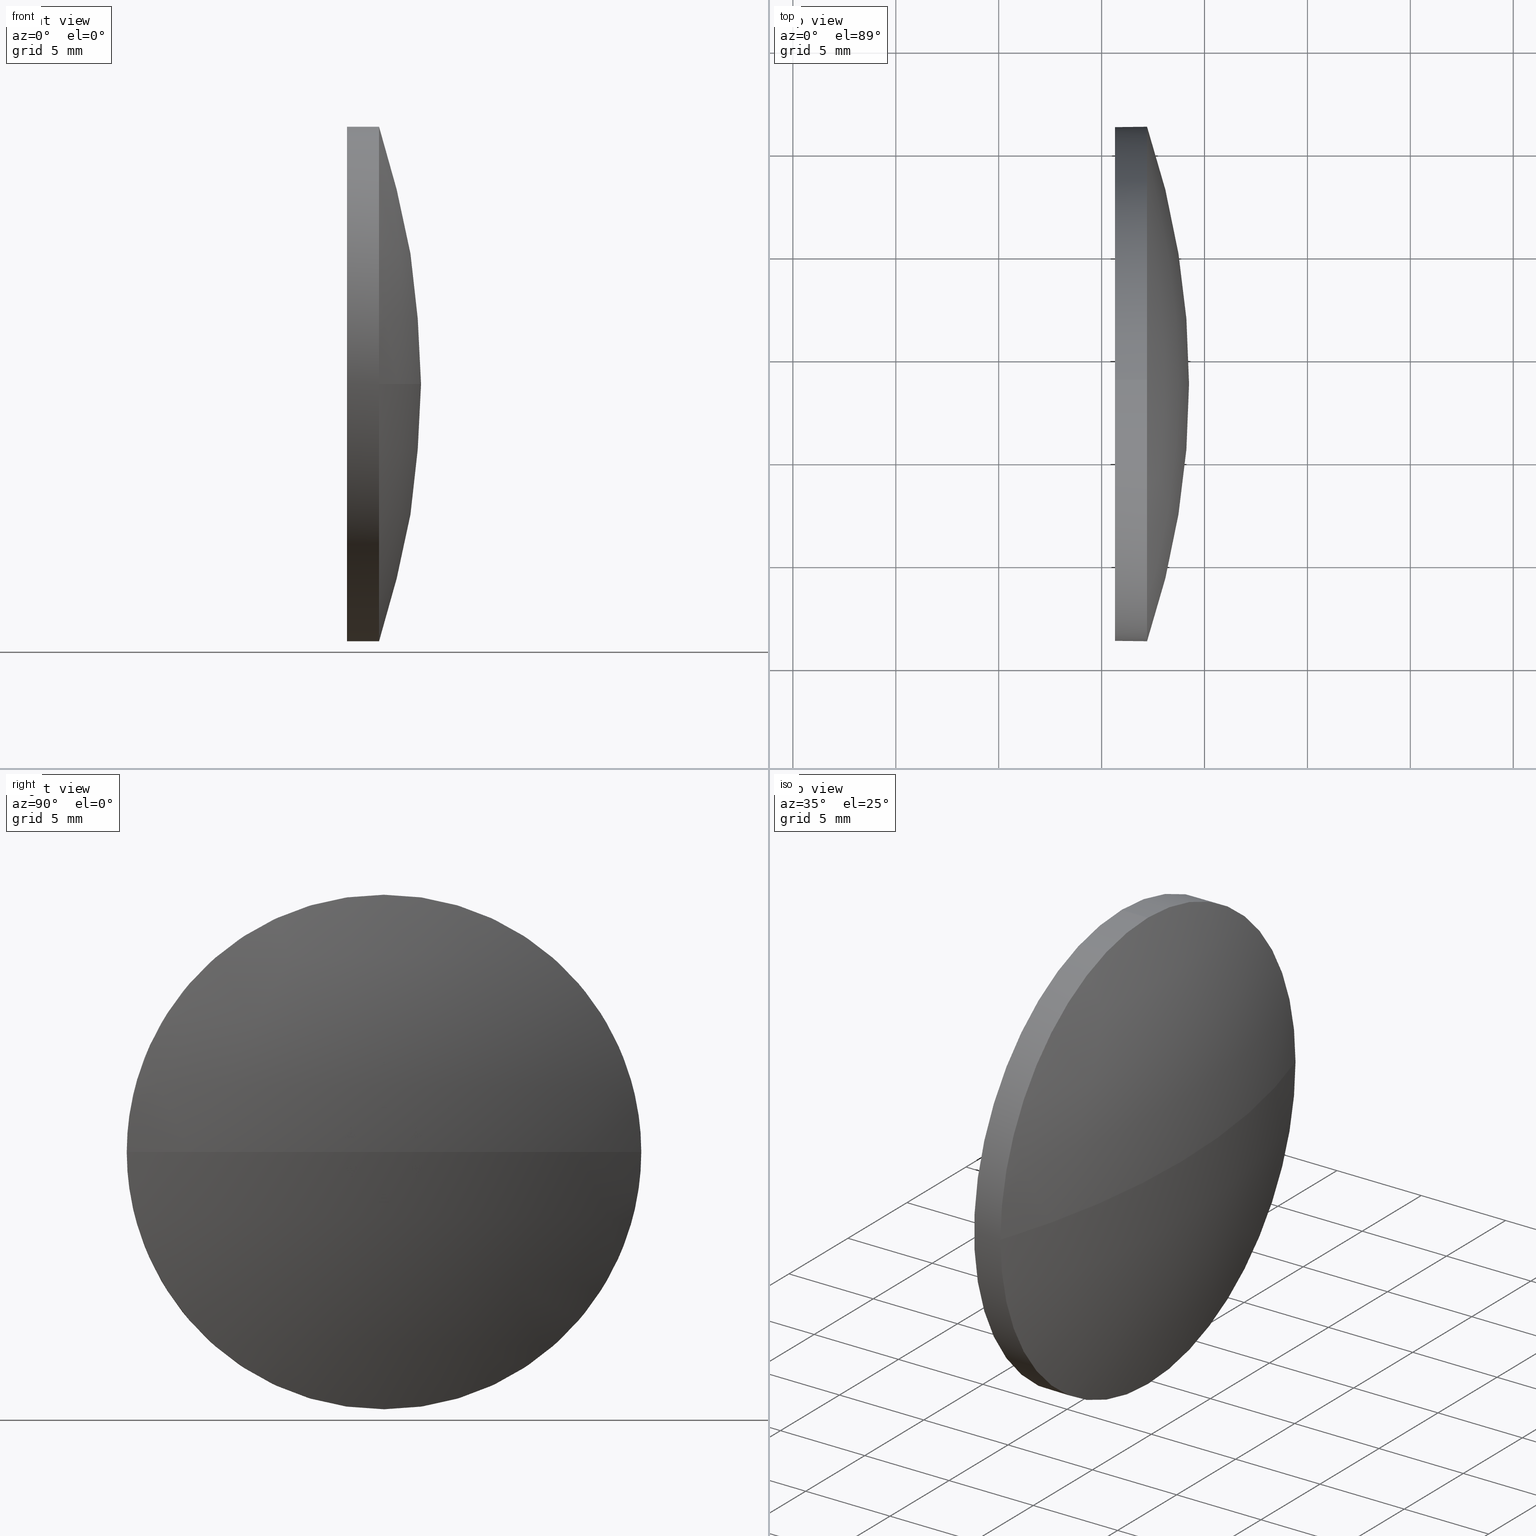
[diagram: canonical four-view strip — front | top / right | iso, engineering-drawing reading convention]
A machine part, canonical four-view strip (front | top / right | iso — engineering-drawing reading convention). The complete STEP part file that produces these views, byte-faithful:
ISO-10303-21;
HEADER;
FILE_DESCRIPTION (( 'STEP AP214' ),
    '1' );
FILE_NAME ('100042.STEP',
    '2019-04-29T07:02:15',
    ( '' ),
    ( '' ),
    'SwSTEP 2.0',
    'SolidWorks 2016',
    '' );
FILE_SCHEMA (( 'AUTOMOTIVE_DESIGN' ));
ENDSEC;

DATA;
#1 = VECTOR ( 'NONE', #125, 1000.000000000000000 ) ;
#2 = COLOUR_RGB ( '',1.000000000000000000, 1.000000000000000000, 1.000000000000000000 ) ;
#3 = UNCERTAINTY_MEASURE_WITH_UNIT (LENGTH_MEASURE( 1.000000000000000100E-005 ), #177, 'distance_accuracy_value', 'NONE');
#4 = CARTESIAN_POINT ( 'NONE',  ( 702.2082137822092100, 248.6989515339254200, 12.49999999999998400 ) ) ;
#5 = EDGE_CURVE ( 'NONE', #52, #74, #49, .T. ) ;
#6 = EDGE_LOOP ( 'NONE', ( #66, #115, #128, #35, #126 ) ) ;
#7 = COLOUR_RGB ( '',1.000000000000000000, 1.000000000000000000, 1.000000000000000000 ) ;
#8 = PRODUCT_RELATED_PRODUCT_CATEGORY ( 'part', '', ( #123 ) ) ;
#9 = AXIS2_PLACEMENT_3D ( 'NONE', #105, #33, #124 ) ;
#10 = FILL_AREA_STYLE_COLOUR ( '', #7 ) ;
#11 = CARTESIAN_POINT ( 'NONE',  ( 0.0000000000000000000, 0.0000000000000000000, 0.0000000000000000000 ) ) ;
#12 = PRESENTATION_LAYER_ASSIGNMENT (  '', '', ( #170 ) ) ;
#13 = APPLICATION_CONTEXT ( 'automotive_design' ) ;
#14 = DIRECTION ( 'NONE',  ( -1.000000000000000000, 0.0000000000000000000, 0.0000000000000000000 ) ) ;
#15 = VERTEX_POINT ( 'NONE', #80 ) ;
#16 = EDGE_CURVE ( 'NONE', #15, #52, #83, .T. ) ;
#17 = FACE_OUTER_BOUND ( 'NONE', #85, .T. ) ;
#18 = PLANE ( 'NONE',  #127 ) ;
#19 = ADVANCED_FACE ( 'NONE', ( #60 ), #108, .T. ) ;
#20 =( NAMED_UNIT ( * ) SI_UNIT ( $, .STERADIAN. ) SOLID_ANGLE_UNIT ( ) );
#21 = VECTOR ( 'NONE', #106, 1000.000000000000000 ) ;
#22 = DIRECTION ( 'NONE',  ( -1.000000000000000000, -0.0000000000000000000, -0.0000000000000000000 ) ) ;
#23 = CIRCLE ( 'NONE', #31, 39.31656862745097700 ) ;
#24 = ORIENTED_EDGE ( 'NONE', *, *, #186, .F. ) ;
#25 = AXIS2_PLACEMENT_3D ( 'NONE', #101, #139, #14 ) ;
#26 = SURFACE_SIDE_STYLE ('',( #44 ) ) ;
#27 = DIRECTION ( 'NONE',  ( 0.0000000000000000000, 0.0000000000000000000, 1.000000000000000000 ) ) ;
#28 = UNCERTAINTY_MEASURE_WITH_UNIT (LENGTH_MEASURE( 1.000000000000000100E-005 ), #129, 'distance_accuracy_value', 'NONE');
#29 = STYLED_ITEM ( 'NONE', ( #113 ), #50 ) ;
#30 = CARTESIAN_POINT ( 'NONE',  ( 702.2082137822092100, 248.6989515339254200, -12.49999999999998400 ) ) ;
#31 = AXIS2_PLACEMENT_3D ( 'NONE', #91, #169, #155 ) ;
#32 = SURFACE_STYLE_USAGE ( .BOTH. , #162 ) ;
#33 = DIRECTION ( 'NONE',  ( -1.000000000000000000, -0.0000000000000000000, -0.0000000000000000000 ) ) ;
#34 = CIRCLE ( 'NONE', #38, 12.49999999999998400 ) ;
#35 = ORIENTED_EDGE ( 'NONE', *, *, #114, .F. ) ;
#36 = DIRECTION ( 'NONE',  ( 0.0000000000000000000, 0.0000000000000000000, 1.000000000000000000 ) ) ;
#37 = DIRECTION ( 'NONE',  ( 0.0000000000000000000, -1.000000000000000000, 0.0000000000000000000 ) ) ;
#38 = AXIS2_PLACEMENT_3D ( 'NONE', #111, #22, #75 ) ;
#39 = PRODUCT_DEFINITION ( 'δ֪', '', #109, #161 ) ;
#40 = FACE_OUTER_BOUND ( 'NONE', #6, .T. ) ;
#41 =( NAMED_UNIT ( * ) PLANE_ANGLE_UNIT ( ) SI_UNIT ( $, .RADIAN. ) );
#42 = APPLICATION_CONTEXT ( 'automotive_design' ) ;
#43 = CYLINDRICAL_SURFACE ( 'NONE', #64, 12.49999999999998400 ) ;
#44 = SURFACE_STYLE_FILL_AREA ( #63 ) ;
#45 = MECHANICAL_DESIGN_GEOMETRIC_PRESENTATION_REPRESENTATION (  '', ( #29 ), #58 ) ;
#46 = CARTESIAN_POINT ( 'NONE',  ( 702.2082137822092100, 236.1989515339254800, 0.0000000000000000000 ) ) ;
#47 = CARTESIAN_POINT ( 'NONE',  ( 702.2082137822092100, 248.6989515339254200, 0.0000000000000000000 ) ) ;
#48 = CYLINDRICAL_SURFACE ( 'NONE', #9, 12.49999999999998400 ) ;
#49 = LINE ( 'NONE', #81, #21 ) ;
#50 = ADVANCED_BREP_SHAPE_REPRESENTATION ( '100042', ( #69, #62 ), #103 ) ;
#51 = PRESENTATION_LAYER_ASSIGNMENT (  '', '', ( #29 ) ) ;
#52 = VERTEX_POINT ( 'NONE', #30 ) ;
#53 = CARTESIAN_POINT ( 'NONE',  ( 700.6482137822092700, 248.6989515339254200, 0.0000000000000000000 ) ) ;
#54 = ADVANCED_FACE ( 'NONE', ( #132 ), #18, .F. ) ;
#55 = FACE_OUTER_BOUND ( 'NONE', #57, .T. ) ;
#56 = DIRECTION ( 'NONE',  ( 0.0000000000000000000, 0.0000000000000000000, -1.000000000000000000 ) ) ;
#57 = EDGE_LOOP ( 'NONE', ( #159, #137, #59, #151, #176 ) ) ;
#58 =( GEOMETRIC_REPRESENTATION_CONTEXT ( 3 ) GLOBAL_UNCERTAINTY_ASSIGNED_CONTEXT ( ( #28 ) ) GLOBAL_UNIT_ASSIGNED_CONTEXT ( ( #129, #179, #130 ) ) REPRESENTATION_CONTEXT ( 'NONE', 'WORKASPACE' ) );
#59 = ORIENTED_EDGE ( 'NONE', *, *, #131, .T. ) ;
#60 = FACE_OUTER_BOUND ( 'NONE', #144, .T. ) ;
#61 = CARTESIAN_POINT ( 'NONE',  ( 702.2082137822092100, 248.6989515339254200, 0.0000000000000000000 ) ) ;
#62 = AXIS2_PLACEMENT_3D ( 'NONE', #11, #90, #181 ) ;
#63 = FILL_AREA_STYLE ('',( #10 ) ) ;
#64 = AXIS2_PLACEMENT_3D ( 'NONE', #76, #87, #142 ) ;
#65 = CIRCLE ( 'NONE', #25, 39.31656862745103400 ) ;
#66 = ORIENTED_EDGE ( 'NONE', *, *, #16, .T. ) ;
#67 = FILL_AREA_STYLE ('',( #121 ) ) ;
#68 = AXIS2_PLACEMENT_3D ( 'NONE', #47, #117, #97 ) ;
#69 = MANIFOLD_SOLID_BREP ( '��ת2', #171 ) ;
#70 = DIRECTION ( 'NONE',  ( 0.0000000000000000000, -1.000000000000000000, 0.0000000000000000000 ) ) ;
#71 = CARTESIAN_POINT ( 'NONE',  ( 704.2482137822092900, 248.6989515339255100, 0.0000000000000000000 ) ) ;
#72 = ORIENTED_EDGE ( 'NONE', *, *, #174, .F. ) ;
#73 = AXIS2_PLACEMENT_3D ( 'NONE', #110, #149, #36 ) ;
#74 = VERTEX_POINT ( 'NONE', #163 ) ;
#75 = DIRECTION ( 'NONE',  ( 0.0000000000000000000, 0.0000000000000000000, 1.000000000000000000 ) ) ;
#76 = CARTESIAN_POINT ( 'NONE',  ( 677.0000888146496400, 248.6989515339254200, 0.0000000000000000000 ) ) ;
#77 =( GEOMETRIC_REPRESENTATION_CONTEXT ( 3 ) GLOBAL_UNCERTAINTY_ASSIGNED_CONTEXT ( ( #141 ) ) GLOBAL_UNIT_ASSIGNED_CONTEXT ( ( #133, #145, #20 ) ) REPRESENTATION_CONTEXT ( 'NONE', 'WORKASPACE' ) );
#78 = ORIENTED_EDGE ( 'NONE', *, *, #96, .T. ) ;
#79 = ADVANCED_FACE ( 'NONE', ( #55 ), #48, .T. ) ;
#80 = CARTESIAN_POINT ( 'NONE',  ( 702.2082137822092100, 261.1989515339254800, 1.530808498934184600E-015 ) ) ;
#81 = CARTESIAN_POINT ( 'NONE',  ( 677.0000888146496400, 248.6989515339254200, -12.49999999999998400 ) ) ;
#82 = SPHERICAL_SURFACE ( 'NONE', #183, 39.31656862745099100 ) ;
#83 = CIRCLE ( 'NONE', #148, 12.49999999999998400 ) ;
#84 = CARTESIAN_POINT ( 'NONE',  ( 664.9316451547582600, 248.6989515339255100, 0.0000000000000000000 ) ) ;
#85 = EDGE_LOOP ( 'NONE', ( #72, #92, #24, #180 ) ) ;
#86 = VERTEX_POINT ( 'NONE', #4 ) ;
#87 = DIRECTION ( 'NONE',  ( -1.000000000000000000, -0.0000000000000000000, -0.0000000000000000000 ) ) ;
#88 = ORIENTED_EDGE ( 'NONE', *, *, #136, .T. ) ;
#89 = APPLICATION_PROTOCOL_DEFINITION ( 'draft international standard', 'automotive_design', 1998, #42 ) ;
#90 = DIRECTION ( 'NONE',  ( 0.0000000000000000000, 0.0000000000000000000, 1.000000000000000000 ) ) ;
#91 = CARTESIAN_POINT ( 'NONE',  ( 664.9316451547582600, 248.6989515339255100, 0.0000000000000000000 ) ) ;
#92 = ORIENTED_EDGE ( 'NONE', *, *, #167, .T. ) ;
#93 = DIRECTION ( 'NONE',  ( 0.0000000000000000000, 0.0000000000000000000, 1.000000000000000000 ) ) ;
#94 = ORIENTED_EDGE ( 'NONE', *, *, #156, .F. ) ;
#95 = PRESENTATION_STYLE_ASSIGNMENT (( #32 ) ) ;
#96 = EDGE_CURVE ( 'NONE', #74, #152, #158, .T. ) ;
#97 = DIRECTION ( 'NONE',  ( 0.0000000000000000000, 0.0000000000000000000, 1.000000000000000000 ) ) ;
#98 = LINE ( 'NONE', #153, #1 ) ;
#99 = ORIENTED_EDGE ( 'NONE', *, *, #174, .T. ) ;
#100 = PRODUCT_DEFINITION_SHAPE ( 'NONE', 'NONE',  #39 ) ;
#101 = CARTESIAN_POINT ( 'NONE',  ( 664.9316451547582600, 248.6989515339255100, 0.0000000000000000000 ) ) ;
#102 = PRODUCT_CONTEXT ( 'NONE', #42, 'mechanical' ) ;
#103 =( GEOMETRIC_REPRESENTATION_CONTEXT ( 3 ) GLOBAL_UNCERTAINTY_ASSIGNED_CONTEXT ( ( #3 ) ) GLOBAL_UNIT_ASSIGNED_CONTEXT ( ( #177, #41, #138 ) ) REPRESENTATION_CONTEXT ( 'NONE', 'WORKASPACE' ) );
#104 = ADVANCED_FACE ( 'NONE', ( #17 ), #82, .T. ) ;
#105 = CARTESIAN_POINT ( 'NONE',  ( 677.0000888146496400, 248.6989515339254200, 0.0000000000000000000 ) ) ;
#106 = DIRECTION ( 'NONE',  ( -1.000000000000000000, -0.0000000000000000000, -0.0000000000000000000 ) ) ;
#107 = CARTESIAN_POINT ( 'NONE',  ( 664.9316451547582600, 248.6989515339255100, 0.0000000000000000000 ) ) ;
#108 = SPHERICAL_SURFACE ( 'NONE', #146, 39.31656862745099100 ) ;
#109 = PRODUCT_DEFINITION_FORMATION_WITH_SPECIFIED_SOURCE ( '�κ�', '', #123, .NOT_KNOWN. ) ;
#110 = CARTESIAN_POINT ( 'NONE',  ( 700.6482137822092700, 248.6989515339254200, 0.0000000000000000000 ) ) ;
#111 = CARTESIAN_POINT ( 'NONE',  ( 702.2082137822092100, 248.6989515339254200, 0.0000000000000000000 ) ) ;
#112 = CIRCLE ( 'NONE', #175, 12.49999999999998400 ) ;
#113 = PRESENTATION_STYLE_ASSIGNMENT (( #166 ) ) ;
#114 = EDGE_CURVE ( 'NONE', #86, #152, #98, .T. ) ;
#115 = ORIENTED_EDGE ( 'NONE', *, *, #5, .T. ) ;
#116 = APPLICATION_PROTOCOL_DEFINITION ( 'draft international standard', 'automotive_design', 1998, #13 ) ;
#117 = DIRECTION ( 'NONE',  ( -1.000000000000000000, -0.0000000000000000000, -0.0000000000000000000 ) ) ;
#118 = SURFACE_STYLE_FILL_AREA ( #67 ) ;
#119 = ORIENTED_EDGE ( 'NONE', *, *, #131, .F. ) ;
#120 = SHAPE_DEFINITION_REPRESENTATION ( #100, #50 ) ;
#121 = FILL_AREA_STYLE_COLOUR ( '', #2 ) ;
#122 = VERTEX_POINT ( 'NONE', #71 ) ;
#123 = PRODUCT ( '100042', '100042', '', ( #102 ) ) ;
#124 = DIRECTION ( 'NONE',  ( 0.0000000000000000000, 0.0000000000000000000, 1.000000000000000000 ) ) ;
#125 = DIRECTION ( 'NONE',  ( -1.000000000000000000, -0.0000000000000000000, -0.0000000000000000000 ) ) ;
#126 = ORIENTED_EDGE ( 'NONE', *, *, #156, .T. ) ;
#127 = AXIS2_PLACEMENT_3D ( 'NONE', #53, #173, #56 ) ;
#128 = ORIENTED_EDGE ( 'NONE', *, *, #136, .F. ) ;
#129 =( LENGTH_UNIT ( ) NAMED_UNIT ( * ) SI_UNIT ( .MILLI., .METRE. ) );
#130 =( NAMED_UNIT ( * ) SI_UNIT ( $, .STERADIAN. ) SOLID_ANGLE_UNIT ( ) );
#131 = EDGE_CURVE ( 'NONE', #134, #86, #150, .T. ) ;
#132 = FACE_OUTER_BOUND ( 'NONE', #143, .T. ) ;
#133 =( LENGTH_UNIT ( ) NAMED_UNIT ( * ) SI_UNIT ( .MILLI., .METRE. ) );
#134 = VERTEX_POINT ( 'NONE', #46 ) ;
#135 = DIRECTION ( 'NONE',  ( 0.0000000000000000000, 0.0000000000000000000, 1.000000000000000000 ) ) ;
#136 = EDGE_CURVE ( 'NONE', #152, #74, #147, .T. ) ;
#137 = ORIENTED_EDGE ( 'NONE', *, *, #186, .T. ) ;
#138 =( NAMED_UNIT ( * ) SI_UNIT ( $, .STERADIAN. ) SOLID_ANGLE_UNIT ( ) );
#139 = DIRECTION ( 'NONE',  ( 0.0000000000000000000, 0.0000000000000000000, -1.000000000000000000 ) ) ;
#140 = DIRECTION ( 'NONE',  ( -1.000000000000000000, -0.0000000000000000000, -0.0000000000000000000 ) ) ;
#141 = UNCERTAINTY_MEASURE_WITH_UNIT (LENGTH_MEASURE( 1.000000000000000100E-005 ), #133, 'distance_accuracy_value', 'NONE');
#142 = DIRECTION ( 'NONE',  ( 0.0000000000000000000, 0.0000000000000000000, 1.000000000000000000 ) ) ;
#143 = EDGE_LOOP ( 'NONE', ( #88, #78 ) ) ;
#144 = EDGE_LOOP ( 'NONE', ( #178, #99, #94, #119 ) ) ;
#145 =( NAMED_UNIT ( * ) PLANE_ANGLE_UNIT ( ) SI_UNIT ( $, .RADIAN. ) );
#146 = AXIS2_PLACEMENT_3D ( 'NONE', #107, #93, #70 ) ;
#147 = CIRCLE ( 'NONE', #165, 12.49999999999998400 ) ;
#148 = AXIS2_PLACEMENT_3D ( 'NONE', #164, #172, #185 ) ;
#149 = DIRECTION ( 'NONE',  ( -1.000000000000000000, -0.0000000000000000000, -0.0000000000000000000 ) ) ;
#150 = CIRCLE ( 'NONE', #68, 12.49999999999998400 ) ;
#151 = ORIENTED_EDGE ( 'NONE', *, *, #114, .T. ) ;
#152 = VERTEX_POINT ( 'NONE', #157 ) ;
#153 = CARTESIAN_POINT ( 'NONE',  ( 677.0000888146496400, 248.6989515339254200, 12.49999999999998400 ) ) ;
#154 = DIRECTION ( 'NONE',  ( 0.0000000000000000000, 0.0000000000000000000, 1.000000000000000000 ) ) ;
#155 = DIRECTION ( 'NONE',  ( 0.0000000000000000000, -1.000000000000000000, -1.224646799147353700E-016 ) ) ;
#156 = EDGE_CURVE ( 'NONE', #86, #15, #112, .T. ) ;
#157 = CARTESIAN_POINT ( 'NONE',  ( 700.6482137822092700, 248.6989515339254200, 12.49999999999998400 ) ) ;
#158 = CIRCLE ( 'NONE', #73, 12.49999999999998400 ) ;
#159 = ORIENTED_EDGE ( 'NONE', *, *, #5, .F. ) ;
#160 = MECHANICAL_DESIGN_GEOMETRIC_PRESENTATION_REPRESENTATION (  '', ( #170 ), #77 ) ;
#161 = PRODUCT_DEFINITION_CONTEXT ( 'detailed design', #13, 'design' ) ;
#162 = SURFACE_SIDE_STYLE ('',( #118 ) ) ;
#163 = CARTESIAN_POINT ( 'NONE',  ( 700.6482137822092700, 248.6989515339254200, -12.49999999999998400 ) ) ;
#164 = CARTESIAN_POINT ( 'NONE',  ( 702.2082137822092100, 248.6989515339254200, 0.0000000000000000000 ) ) ;
#165 = AXIS2_PLACEMENT_3D ( 'NONE', #182, #140, #154 ) ;
#166 = SURFACE_STYLE_USAGE ( .BOTH. , #26 ) ;
#167 = EDGE_CURVE ( 'NONE', #122, #134, #65, .T. ) ;
#168 = DIRECTION ( 'NONE',  ( -1.000000000000000000, -0.0000000000000000000, -0.0000000000000000000 ) ) ;
#169 = DIRECTION ( 'NONE',  ( 0.0000000000000000000, -1.224646799147353200E-016, 1.000000000000000000 ) ) ;
#170 = STYLED_ITEM ( 'NONE', ( #95 ), #69 ) ;
#171 = CLOSED_SHELL ( 'NONE', ( #184, #19, #104, #79, #54 ) ) ;
#172 = DIRECTION ( 'NONE',  ( -1.000000000000000000, -0.0000000000000000000, -0.0000000000000000000 ) ) ;
#173 = DIRECTION ( 'NONE',  ( 1.000000000000000000, 0.0000000000000000000, 0.0000000000000000000 ) ) ;
#174 = EDGE_CURVE ( 'NONE', #122, #15, #23, .T. ) ;
#175 = AXIS2_PLACEMENT_3D ( 'NONE', #61, #168, #27 ) ;
#176 = ORIENTED_EDGE ( 'NONE', *, *, #96, .F. ) ;
#177 =( LENGTH_UNIT ( ) NAMED_UNIT ( * ) SI_UNIT ( .MILLI., .METRE. ) );
#178 = ORIENTED_EDGE ( 'NONE', *, *, #167, .F. ) ;
#179 =( NAMED_UNIT ( * ) PLANE_ANGLE_UNIT ( ) SI_UNIT ( $, .RADIAN. ) );
#180 = ORIENTED_EDGE ( 'NONE', *, *, #16, .F. ) ;
#181 = DIRECTION ( 'NONE',  ( 1.000000000000000000, 0.0000000000000000000, 0.0000000000000000000 ) ) ;
#182 = CARTESIAN_POINT ( 'NONE',  ( 700.6482137822092700, 248.6989515339254200, 0.0000000000000000000 ) ) ;
#183 = AXIS2_PLACEMENT_3D ( 'NONE', #84, #135, #37 ) ;
#184 = ADVANCED_FACE ( 'NONE', ( #40 ), #43, .T. ) ;
#185 = DIRECTION ( 'NONE',  ( 0.0000000000000000000, 0.0000000000000000000, 1.000000000000000000 ) ) ;
#186 = EDGE_CURVE ( 'NONE', #52, #134, #34, .T. ) ;
ENDSEC;
END-ISO-10303-21;
